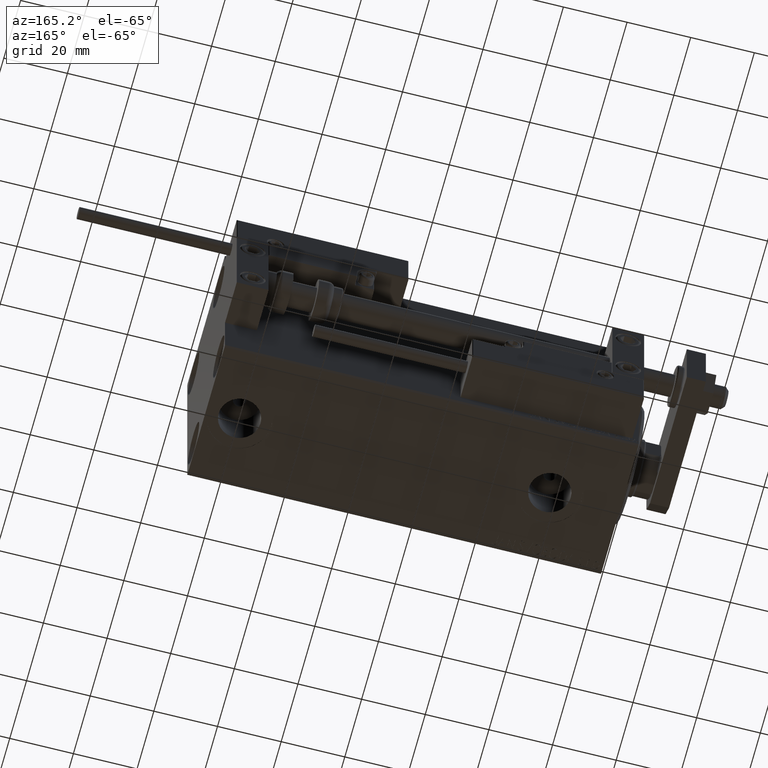
[diagram: clean part render]
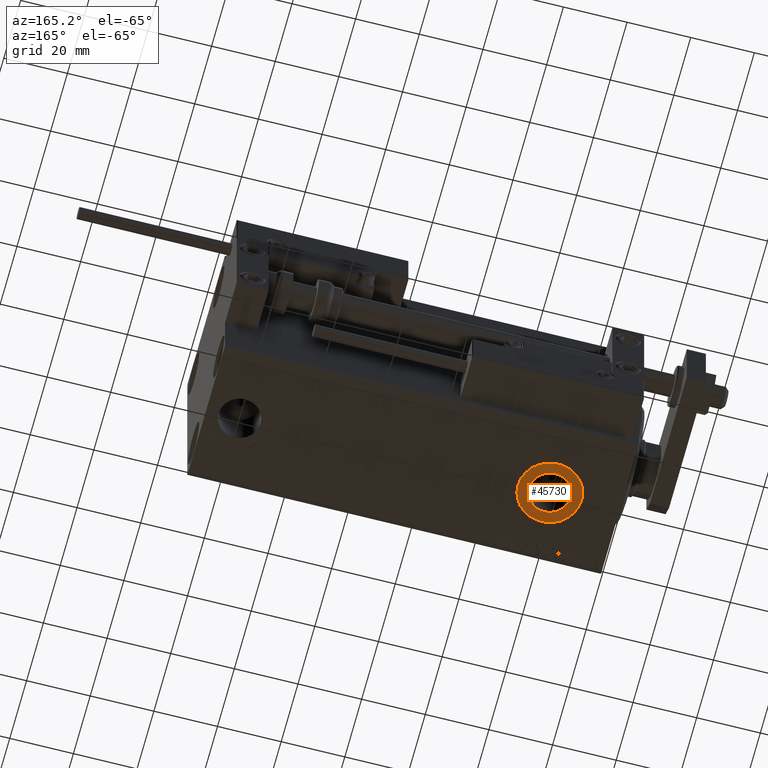
[diagram: same view with one face highlighted and labeled with its STEP entity id]
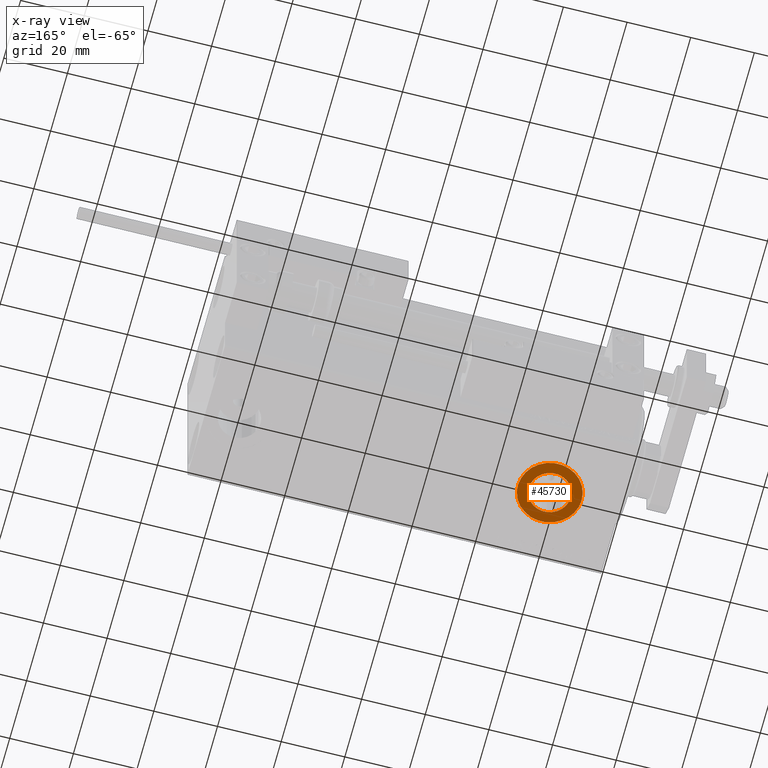
[diagram: x-ray of the same camera — body ghosted, the highlighted face saturated]
A machine part, auxiliary view. The second image highlights one B-rep face of the part: STEP entity #45730.
The next image is the same camera in x-ray: the body ghosted, the highlighted face saturated — about 0% of this face is hidden behind the body in this view.
In plain terms, the highlighted planar face has unit normal (0, 0, -1).
Its self-contained STEP definition (entity closure, byte-faithful):
#209 = DIRECTION ( 'NONE',  ( -1.000000000000000000, 0.000000000000000000, -0.000000000000000000 ) ) ;
#671 = CARTESIAN_POINT ( 'NONE',  ( 15.41999999999999638, -3.594347949397319039E-15, -32.40000000000000568 ) ) ;
#738 = CARTESIAN_POINT ( 'NONE',  ( 32.00000000000000000, -2.369701150249966375E-15, -32.40000000000000568 ) ) ;
#3287 = AXIS2_PLACEMENT_3D ( 'NONE', #16809, #24173, #39952 ) ;
#4354 = CIRCLE ( 'NONE', #15729, 6.580000000000002736 ) ;
#5364 = EDGE_LOOP ( 'NONE', ( #22573, #42598 ) ) ;
#7421 = DIRECTION ( 'NONE',  ( 0.000000000000000000, 0.000000000000000000, -1.000000000000000000 ) ) ;
#8580 = FACE_BOUND ( 'NONE', #26425, .T. ) ;
#13001 = AXIS2_PLACEMENT_3D ( 'NONE', #43693, #35071, #209 ) ;
#13840 = EDGE_CURVE ( 'NONE', #16414, #18374, #20821, .T. ) ;
#15729 = AXIS2_PLACEMENT_3D ( 'NONE', #22817, #45204, #49026 ) ;
#16414 = VERTEX_POINT ( 'NONE', #671 ) ;
#16809 = CARTESIAN_POINT ( 'NONE',  ( 22.00000000000000000, -3.594347949397319039E-15, -32.40000000000000568 ) ) ;
#18374 = VERTEX_POINT ( 'NONE', #23054 ) ;
#19474 = ORIENTED_EDGE ( 'NONE', *, *, #36648, .F. ) ;
#20821 = CIRCLE ( 'NONE', #27323, 6.580000000000002736 ) ;
#22573 = ORIENTED_EDGE ( 'NONE', *, *, #38850, .T. ) ;
#22773 = CIRCLE ( 'NONE', #3287, 10.00000000000000000 ) ;
#22817 = CARTESIAN_POINT ( 'NONE',  ( 22.00000000000000000, -3.594347949397319039E-15, -32.40000000000000568 ) ) ;
#23054 = CARTESIAN_POINT ( 'NONE',  ( 28.58000000000000185, -2.788530355558360786E-15, -32.40000000000000568 ) ) ;
#23353 = VERTEX_POINT ( 'NONE', #738 ) ;
#24173 = DIRECTION ( 'NONE',  ( 0.000000000000000000, 0.000000000000000000, -1.000000000000000000 ) ) ;
#26425 = EDGE_LOOP ( 'NONE', ( #42848, #19474 ) ) ;
#27323 = AXIS2_PLACEMENT_3D ( 'NONE', #41809, #37734, #34173 ) ;
#30586 = DIRECTION ( 'NONE',  ( -1.000000000000000000, 0.000000000000000000, 0.000000000000000000 ) ) ;
#34173 = DIRECTION ( 'NONE',  ( -1.000000000000000000, 0.000000000000000000, 0.000000000000000000 ) ) ;
#35071 = DIRECTION ( 'NONE',  ( 0.000000000000000000, 0.000000000000000000, -1.000000000000000000 ) ) ;
#36648 = EDGE_CURVE ( 'NONE', #18374, #16414, #4354, .T. ) ;
#36955 = CARTESIAN_POINT ( 'NONE',  ( 22.00000000000000000, -3.594347949397319039E-15, -32.40000000000000568 ) ) ;
#37734 = DIRECTION ( 'NONE',  ( 0.000000000000000000, 0.000000000000000000, -1.000000000000000000 ) ) ;
#38493 = CIRCLE ( 'NONE', #46639, 10.00000000000000000 ) ;
#38850 = EDGE_CURVE ( 'NONE', #45573, #23353, #38493, .T. ) ;
#39952 = DIRECTION ( 'NONE',  ( -1.000000000000000000, 0.000000000000000000, 0.000000000000000000 ) ) ;
#41809 = CARTESIAN_POINT ( 'NONE',  ( 22.00000000000000000, -3.594347949397319039E-15, -32.40000000000000568 ) ) ;
#42598 = ORIENTED_EDGE ( 'NONE', *, *, #46479, .T. ) ;
#42700 = FACE_OUTER_BOUND ( 'NONE', #5364, .T. ) ;
#42848 = ORIENTED_EDGE ( 'NONE', *, *, #13840, .F. ) ;
#43445 = PLANE ( 'NONE',  #13001 ) ;
#43693 = CARTESIAN_POINT ( 'NONE',  ( 0.000000000000000000, 0.000000000000000000, -32.40000000000000568 ) ) ;
#44505 = CARTESIAN_POINT ( 'NONE',  ( 11.99999999999999822, -3.594347949397319039E-15, -32.40000000000000568 ) ) ;
#45204 = DIRECTION ( 'NONE',  ( 0.000000000000000000, 0.000000000000000000, -1.000000000000000000 ) ) ;
#45573 = VERTEX_POINT ( 'NONE', #44505 ) ;
#45730 = ADVANCED_FACE ( 'NONE', ( #8580, #42700 ), #43445, .T. ) ;
#46479 = EDGE_CURVE ( 'NONE', #23353, #45573, #22773, .T. ) ;
#46639 = AXIS2_PLACEMENT_3D ( 'NONE', #36955, #7421, #30586 ) ;
#49026 = DIRECTION ( 'NONE',  ( -1.000000000000000000, 0.000000000000000000, 0.000000000000000000 ) ) ;